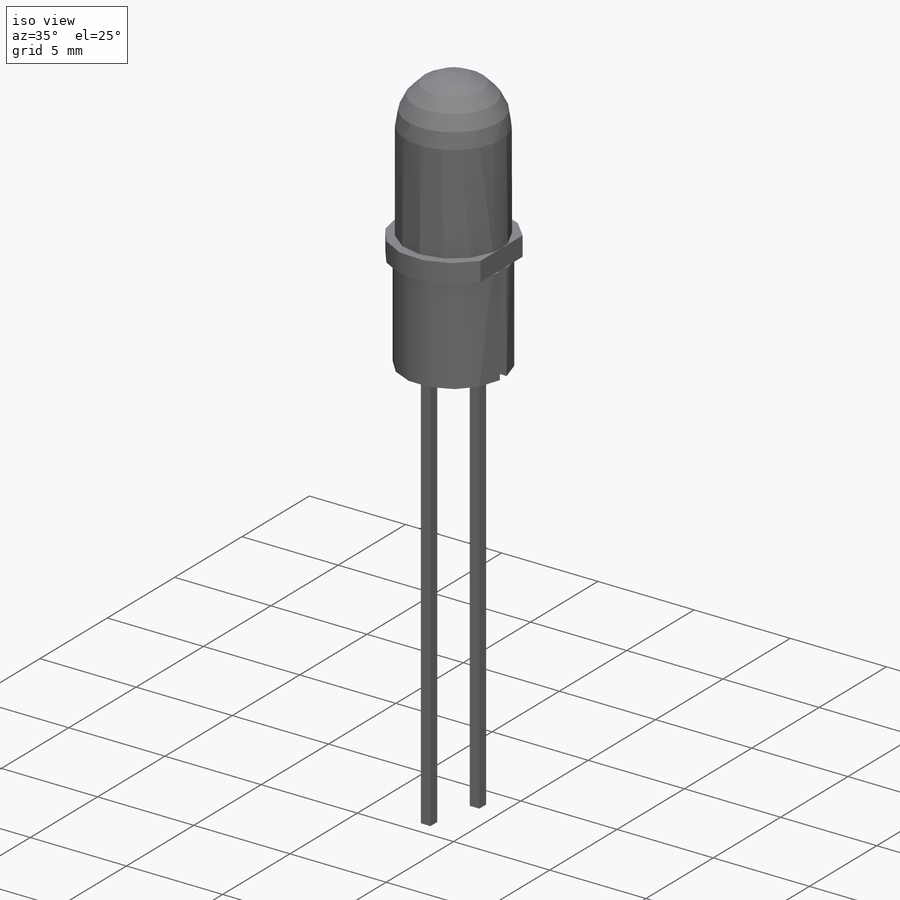
[diagram: iso view]
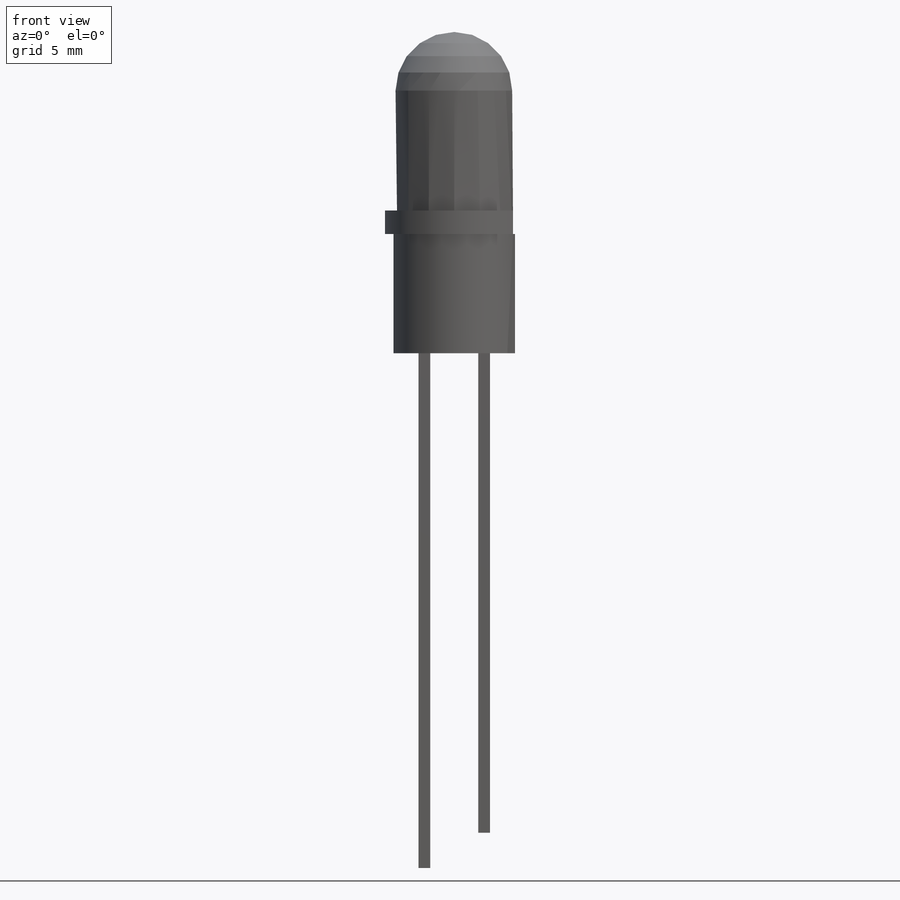
[diagram: front view]
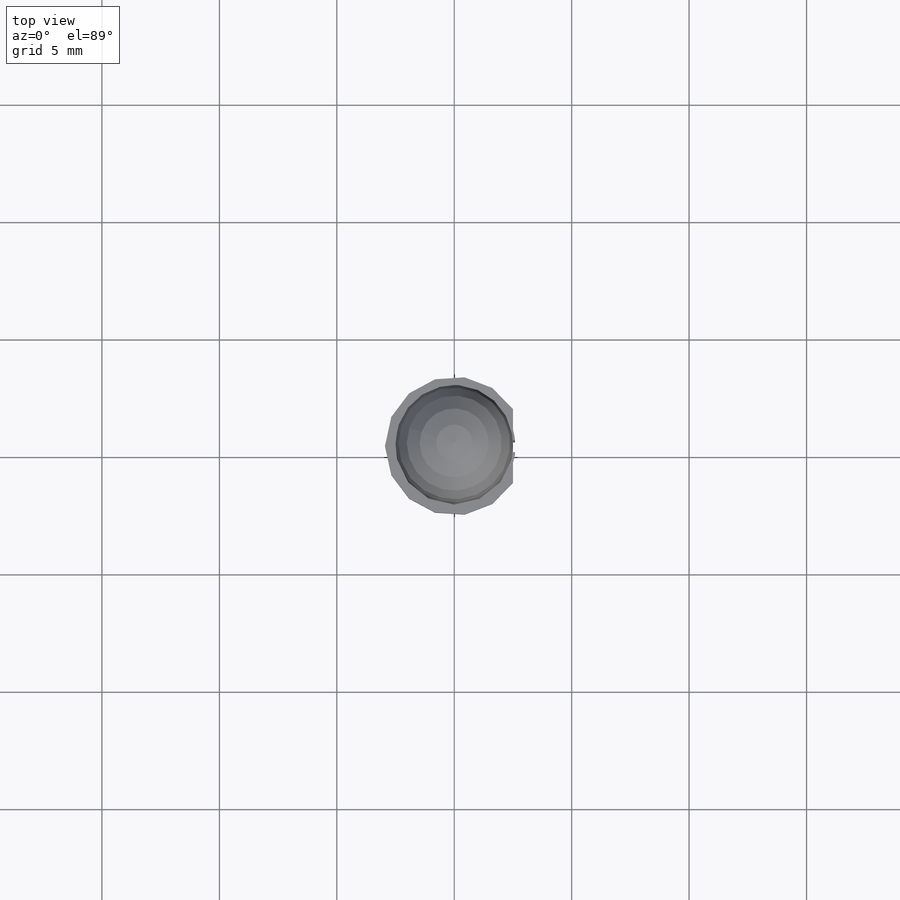
[diagram: top view]
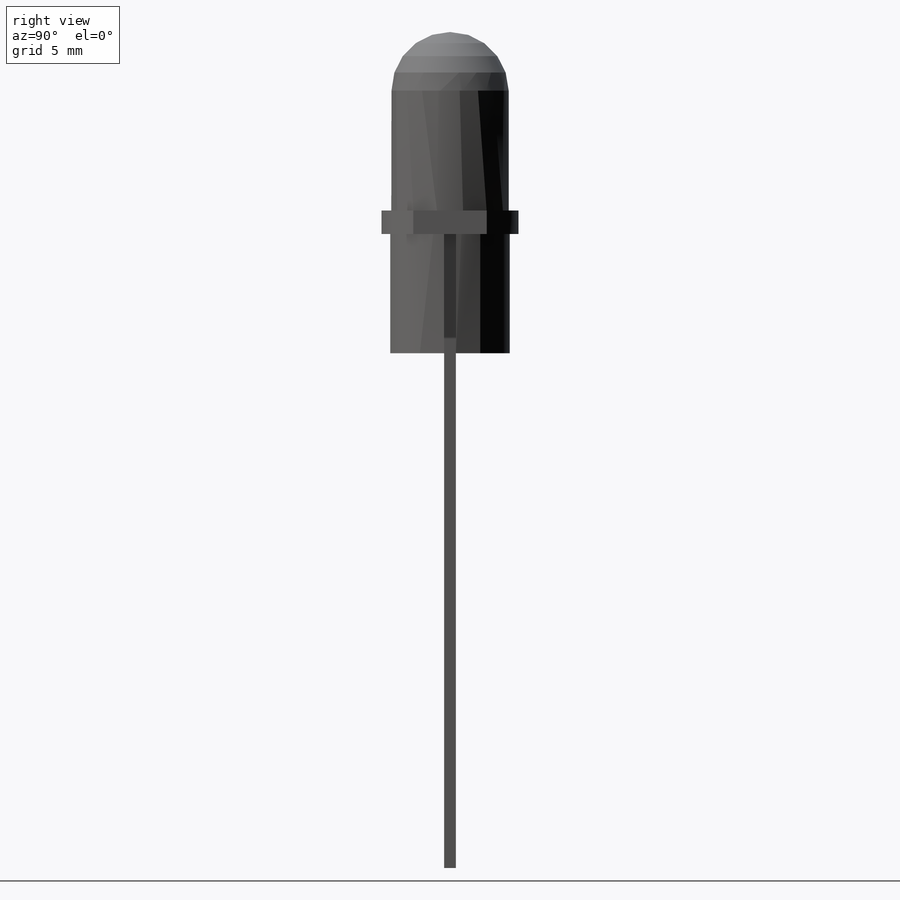
[diagram: right view]
SOLIDWORKS PART (.sldprt)
format: sldprt  version: not decoded by parser v0  size: 642,560 bytes
history: native  units: mm
features: sketch x6, extrude x4, material x1, revolve x1, plane x1, cut_extrude x1 (+13 scaffold rows collapsed)
feature tree (27):
  scaffold x13  (default folders/planes/origin — collapsed)
  material  "Material <not specified>"
  sketch  "Sketch1"  dims[c1.D2=5.0mm c1.D1=7.6mm c2.D2=2.0mm]
  revolve  "Revolve1"  Angle=360deg
  plane  "Plane1"  Offset=1mm
  sketch  "Sketch2"  dims[D1=5.9mm]
  extrude  "Extrude1"  [1 undecoded]
  sketch  "Sketch3"  dims[D4=5.2mm D5=0.725mm D1=0.5mm D2=0.5mm D3=2.54mm]
  extrude  "Extrude2"  Depth=27mm
  extrude  "Extrude3"  [1 undecoded]
  sketch  "Sketch3<3>"  dims[D1=25.5mm]
  extrude  "Extrude5"  [1 undecoded]
  sketch  "Sketch3<4>"  dims[D1=5.08mm]
  sketch  "Sketch4"
  cut_extrude  "Cut-Extrude1"  Depth=0.01mm
decode coverage: 8 of 12 modeling features carry decoded parameters
note: 3 parameter values undecoded
summary: no parameter record found for 3 features
note: suppression state not decoded; provenance and decode notes live in map.json
